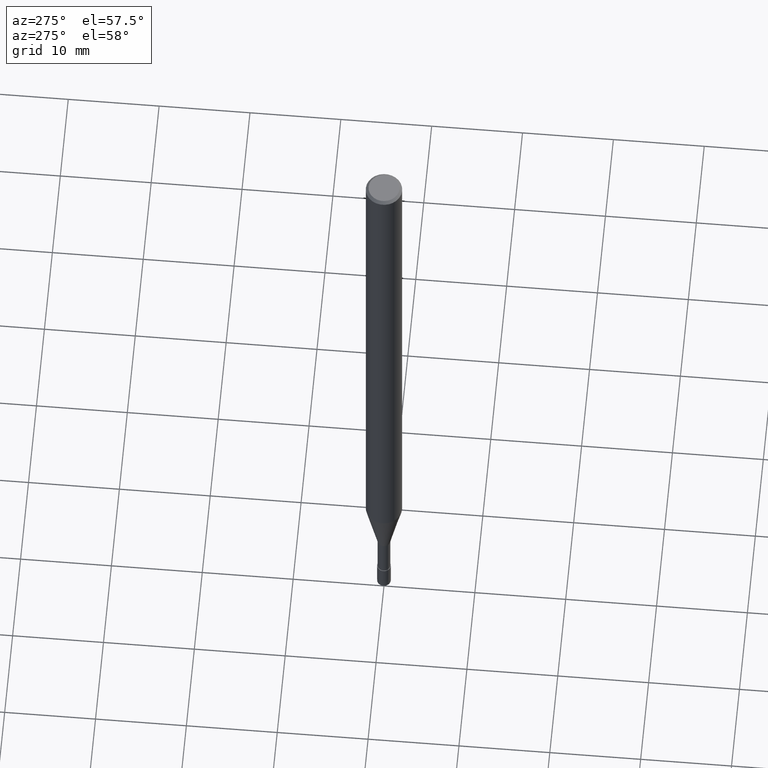
[diagram: clean part render]
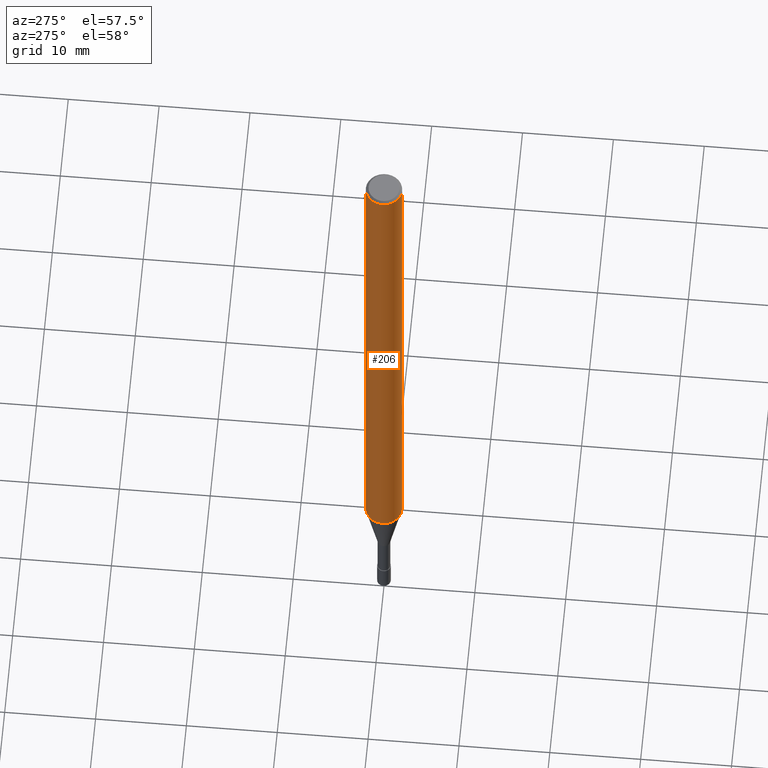
[diagram: same view with one face highlighted and labeled with its STEP entity id]
A machine part, auxiliary view. The second image highlights one B-rep face of the part: STEP entity #206.
In plain terms, the highlighted cylindrical surface (edge-blend (fillet) strip) has radius 2 mm, axis along (-0, -0, 1).
Its self-contained STEP definition (entity closure, byte-faithful):
#128=EDGE_CURVE('',#208,#190,#270,.T.);
#144=VERTEX_POINT('',#290);
#154=EDGE_CURVE('',#144,#198,#303,.T.);
#178=EDGE_CURVE('',#190,#198,#330,.T.);
#180=EDGE_CURVE('',#144,#208,#332,.T.);
#190=VERTEX_POINT('',#342);
#198=VERTEX_POINT('',#350);
#206=ADVANCED_FACE('',(#358),#359,.T.);
#208=VERTEX_POINT('',#361);
#270=CIRCLE('',#430,2.0);
#290=CARTESIAN_POINT('',(2.44921270764475E-016,-2.0,-65.312));
#303=CIRCLE('',#466,2.0);
#330=LINE('',#499,#500);
#332=LINE('',#503,#504);
#342=CARTESIAN_POINT('',(0.0,2.0,-0.299999999999997));
#350=CARTESIAN_POINT('',(0.0,2.0,-65.312));
#358=FACE_OUTER_BOUND('',#537,.T.);
#359=CYLINDRICAL_SURFACE('',#538,2.0);
#361=CARTESIAN_POINT('',(2.44921270764475E-016,-2.0,-0.299999999999997));
#430=AXIS2_PLACEMENT_3D('',#596,#597,#598);
#466=AXIS2_PLACEMENT_3D('',#650,#651,#652);
#499=CARTESIAN_POINT('',(-2.44921270764475E-016,2.0,-32.806));
#500=VECTOR('',#685,1.0);
#503=CARTESIAN_POINT('',(2.44921270764475E-016,-2.0,-32.806));
#504=VECTOR('',#686,1.0);
#537=EDGE_LOOP('',(#707,#708,#709,#710));
#538=AXIS2_PLACEMENT_3D('',#711,#712,#713);
#596=CARTESIAN_POINT('',(0.0,0.0,-0.299999999999997));
#597=DIRECTION('',(0.0,0.0,-1.0));
#598=DIRECTION('',(0.0,1.0,0.0));
#650=CARTESIAN_POINT('',(0.0,0.0,-65.312));
#651=DIRECTION('',(0.0,0.0,-1.0));
#652=DIRECTION('',(0.0,1.0,0.0));
#685=DIRECTION('',(0.0,0.0,-1.0));
#686=DIRECTION('',(-0.0,-0.0,1.0));
#707=ORIENTED_EDGE('',*,*,#178,.T.);
#708=ORIENTED_EDGE('',*,*,#154,.F.);
#709=ORIENTED_EDGE('',*,*,#180,.T.);
#710=ORIENTED_EDGE('',*,*,#128,.T.);
#711=CARTESIAN_POINT('',(0.0,0.0,-32.806));
#712=DIRECTION('',(-0.0,-0.0,1.0));
#713=DIRECTION('',(0.0,1.0,0.0));